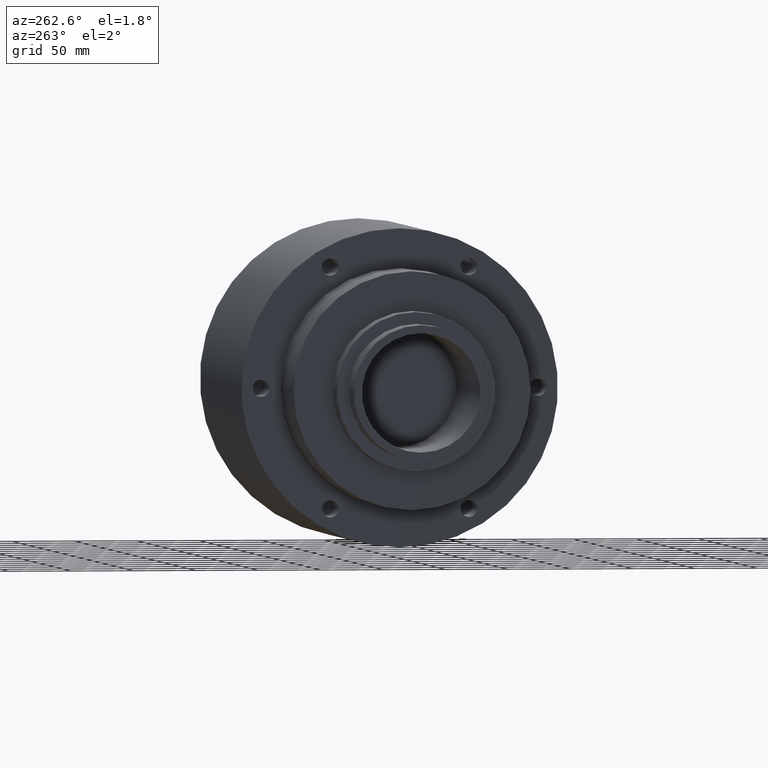
[diagram: clean part render]
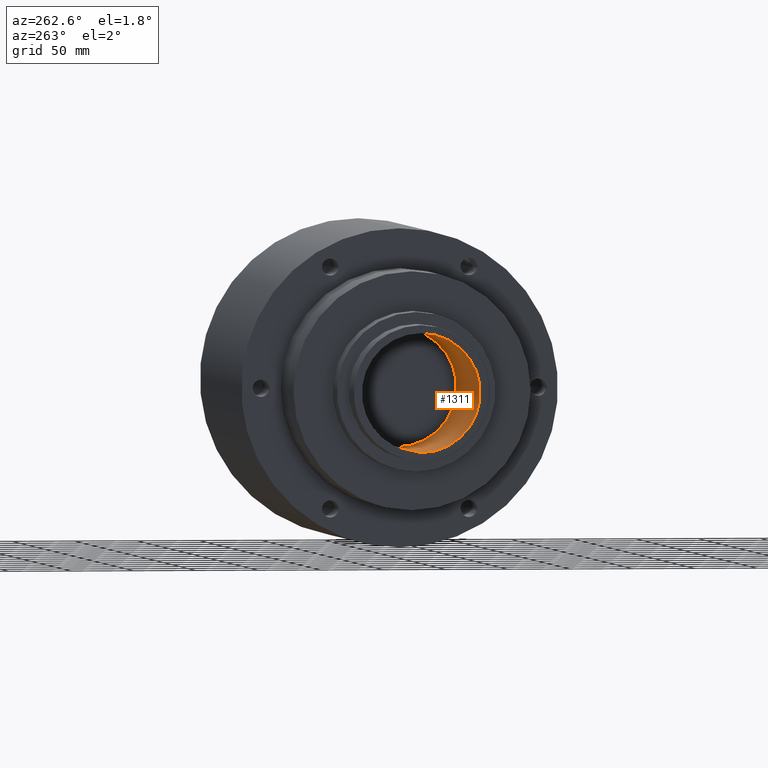
[diagram: same view with one face highlighted and labeled with its STEP entity id]
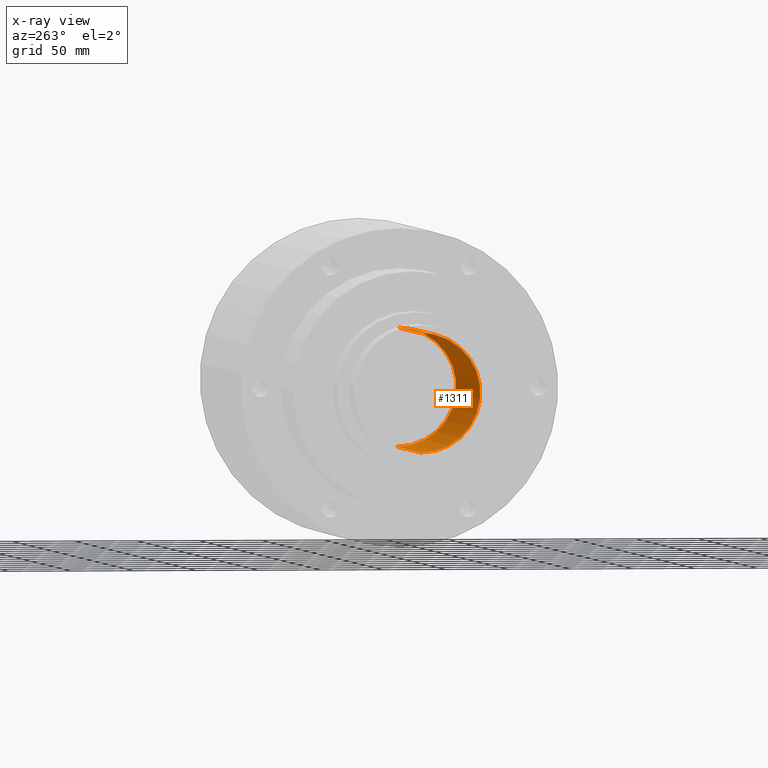
[diagram: x-ray of the same camera — body ghosted, the highlighted face saturated]
A machine part, auxiliary view. The second image highlights one B-rep face of the part: STEP entity #1311.
The next image is the same camera in x-ray: the body ghosted, the highlighted face saturated — about 1% of this face is hidden behind the body in this view.
In plain terms, the highlighted cylindrical surface (partial cylindrical patch) has radius 47.498 mm, axis along (-1, -0, -0).
Its self-contained STEP definition (entity closure, byte-faithful):
#155 = FACE_OUTER_BOUND ( 'NONE', #540, .T. ) ;
#164 = CYLINDRICAL_SURFACE ( 'NONE', #2620, 1.870000000000000300 ) ;
#540 = EDGE_LOOP ( 'NONE', ( #1397, #1398, #1399, #1400 ) ) ;
#649 = VERTEX_POINT ( 'NONE', #767 ) ;
#650 = VERTEX_POINT ( 'NONE', #768 ) ;
#722 = VERTEX_POINT ( 'NONE', #840 ) ;
#723 = VERTEX_POINT ( 'NONE', #841 ) ;
#767 = CARTESIAN_POINT ( 'NONE',  ( 0.004999999999999536900, 0.0000000000000000000, 1.870000000000000300 ) ) ;
#768 = CARTESIAN_POINT ( 'NONE',  ( 0.004999999999999536900, 2.290089514405550600E-016, -1.870000000000000300 ) ) ;
#840 = CARTESIAN_POINT ( 'NONE',  ( 5.799999999999998900, 2.290089514405550600E-016, -1.870000000000000300 ) ) ;
#841 = CARTESIAN_POINT ( 'NONE',  ( 5.799999999999998900, 0.0000000000000000000, 1.870000000000000300 ) ) ;
#1114 = EDGE_CURVE ( 'NONE', #722, #650, #1842, .T. ) ;
#1115 = EDGE_CURVE ( 'NONE', #722, #723, #1853, .T. ) ;
#1116 = EDGE_CURVE ( 'NONE', #723, #649, #1849, .T. ) ;
#1151 = EDGE_CURVE ( 'NONE', #650, #649, #1903, .T. ) ;
#1284 = AXIS2_PLACEMENT_3D ( 'NONE', #2068, #2070, #2071 ) ;
#1311 = ADVANCED_FACE ( 'NONE', ( #155 ), #164, .F. ) ;
#1397 = ORIENTED_EDGE ( 'NONE', *, *, #1115, .F. ) ;
#1398 = ORIENTED_EDGE ( 'NONE', *, *, #1114, .T. ) ;
#1399 = ORIENTED_EDGE ( 'NONE', *, *, #1151, .T. ) ;
#1400 = ORIENTED_EDGE ( 'NONE', *, *, #1116, .F. ) ;
#1841 = VECTOR ( 'NONE', #2073, 39.37007874015748100 ) ;
#1842 = LINE ( 'NONE', #2053, #1848 ) ;
#1848 = VECTOR ( 'NONE', #2067, 39.37007874015748100 ) ;
#1849 = LINE ( 'NONE', #2072, #1841 ) ;
#1853 = CIRCLE ( 'NONE', #1284, 1.870000000000000300 ) ;
#1903 = CIRCLE ( 'NONE', #2555, 1.870000000000000300 ) ;
#2053 = CARTESIAN_POINT ( 'NONE',  ( 5.799999999999998900, 2.290089514405550600E-016, -1.870000000000000300 ) ) ;
#2067 = DIRECTION ( 'NONE',  ( -1.000000000000000000, -0.0000000000000000000, -0.0000000000000000000 ) ) ;
#2068 = CARTESIAN_POINT ( 'NONE',  ( 5.799999999999998900, 0.0000000000000000000, 0.0000000000000000000 ) ) ;
#2070 = DIRECTION ( 'NONE',  ( -1.000000000000000000, 0.0000000000000000000, 0.0000000000000000000 ) ) ;
#2071 = DIRECTION ( 'NONE',  ( 0.0000000000000000000, 0.0000000000000000000, 1.000000000000000000 ) ) ;
#2072 = CARTESIAN_POINT ( 'NONE',  ( 5.799999999999998900, 0.0000000000000000000, 1.870000000000000300 ) ) ;
#2073 = DIRECTION ( 'NONE',  ( -1.000000000000000000, -0.0000000000000000000, -0.0000000000000000000 ) ) ;
#2189 = CARTESIAN_POINT ( 'NONE',  ( 0.004999999999999536900, 0.0000000000000000000, 0.0000000000000000000 ) ) ;
#2191 = DIRECTION ( 'NONE',  ( -1.000000000000000000, -0.0000000000000000000, -0.0000000000000000000 ) ) ;
#2192 = DIRECTION ( 'NONE',  ( 0.0000000000000000000, 0.0000000000000000000, -1.000000000000000000 ) ) ;
#2380 = DIRECTION ( 'NONE',  ( 0.0000000000000000000, 0.0000000000000000000, 1.000000000000000000 ) ) ;
#2384 = DIRECTION ( 'NONE',  ( -1.000000000000000000, -0.0000000000000000000, -0.0000000000000000000 ) ) ;
#2385 = CARTESIAN_POINT ( 'NONE',  ( 5.799999999999998900, 0.0000000000000000000, 0.0000000000000000000 ) ) ;
#2555 = AXIS2_PLACEMENT_3D ( 'NONE', #2189, #2191, #2192 ) ;
#2620 = AXIS2_PLACEMENT_3D ( 'NONE', #2385, #2384, #2380 ) ;